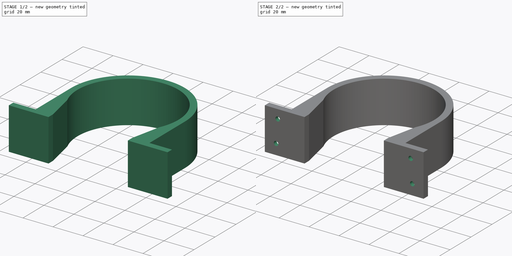
[diagram: build sequence overview — one tinted view per stage of 2, left to right]
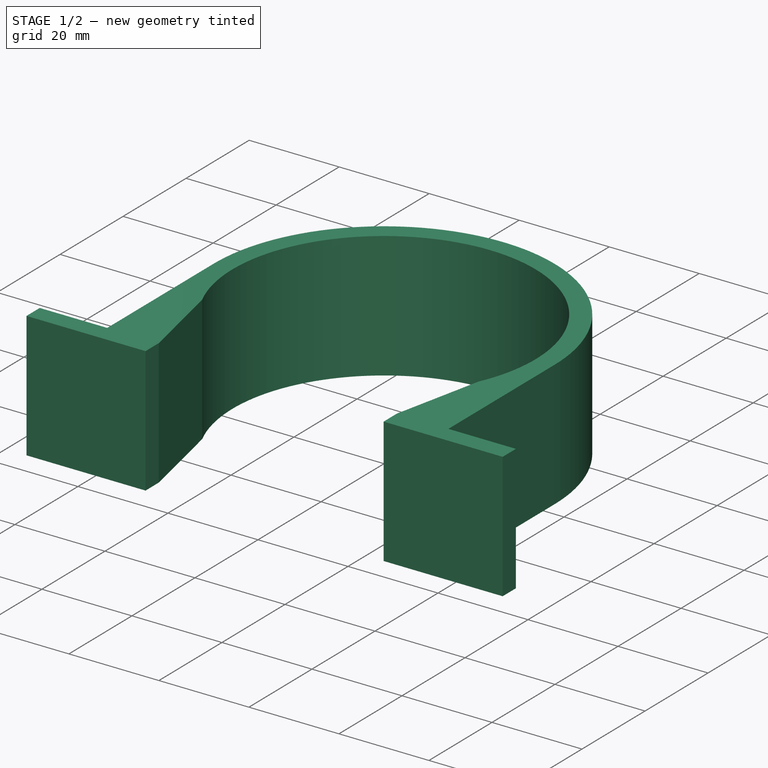
[diagram: stage 1 of 2 — iso view after this stage's code; geometry added in this stage tinted green]
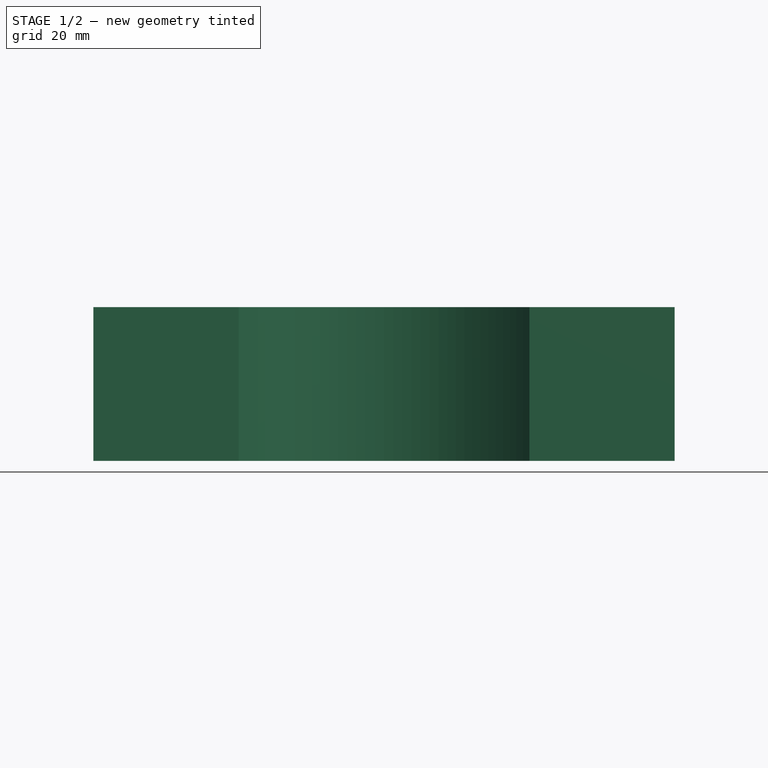
[diagram: stage 1 of 2 — front view after this stage's code; geometry added in this stage tinted green]
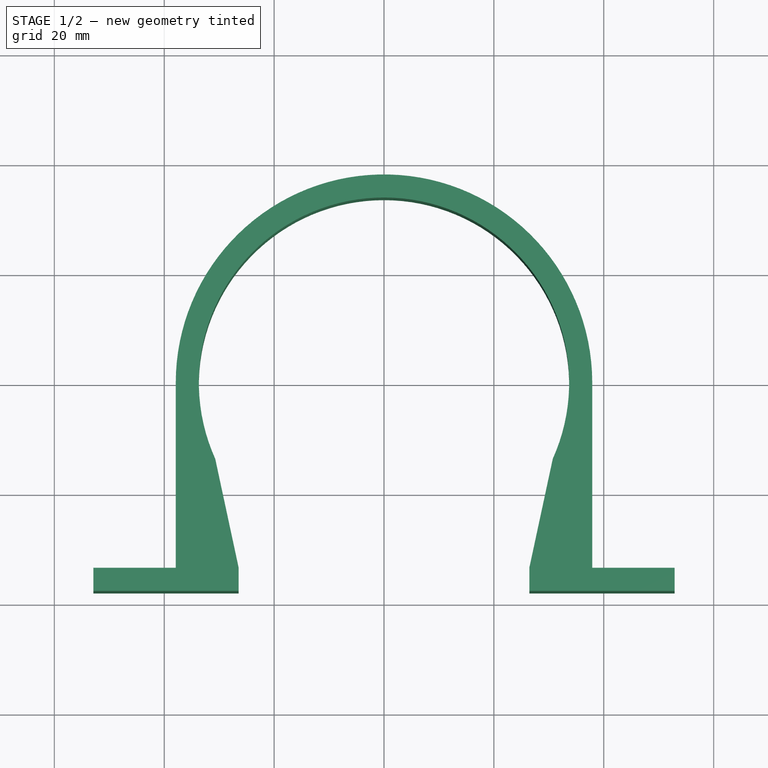
[diagram: stage 1 of 2 — top view after this stage's code; geometry added in this stage tinted green]
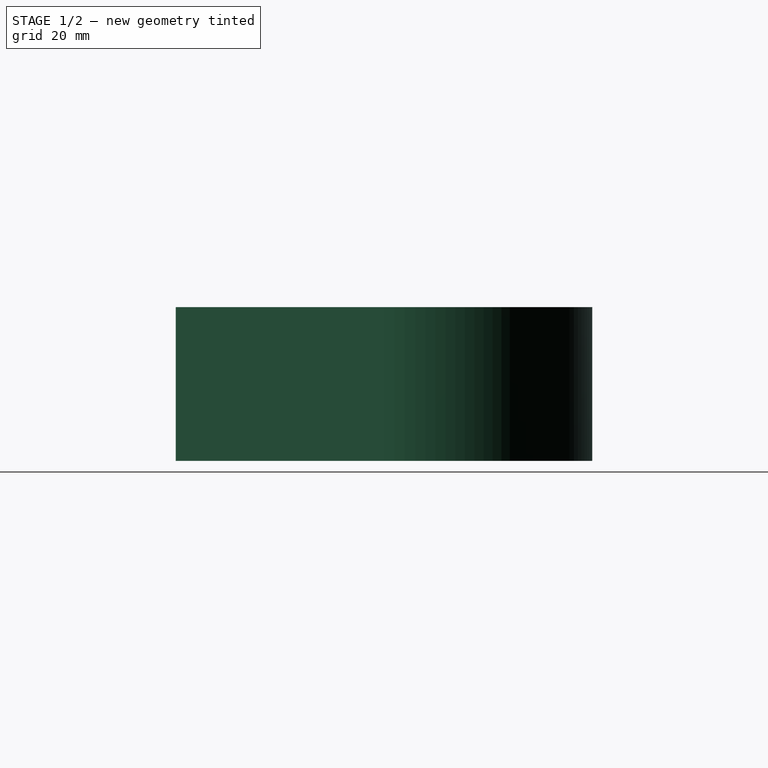
[diagram: stage 1 of 2 — right view after this stage's code; geometry added in this stage tinted green]
FCSTD DOCUMENT  (FreeCAD 1.0R39285 (Git))
Label: inline-filter-bracket
License: All rights reserved
LicenseURL: https://en.wikipedia.org/wiki/All_rights_reserved
objects: Sketcher::SketchObject×2, App::VarSet×1, PartDesign::Pad×1, PartDesign::Hole×1, PartDesign::Body×1
note: 11 computed .brp shape members not serialized (recipe doc carries the construction recipe); baked Part::Feature solids carry a one-line shape summary decoded from their .brp

FEATURE [App::VarSet] VarSet
  Base_diameter = 67.4
FEATURE [Sketcher::SketchObject] Sketch
  ArcFitTolerance = 1e-06
  AttachmentSupport = -> [XY_Plane]
  FullyConstrained = false
  MakeInternals = false
  MapMode = 5
  expr: Constraints[1] = VarSet.Base_diameter
  sketch-geometry (20):
    g0: ArcOfCircle CenterX=0 CenterY=0 CenterZ=0 NormalX=0 NormalY=0 NormalZ=1 AngleXU=0 Radius=33.7 StartAngle=5.85933 EndAngle=9.84863
    g1: LineSegment [constr] StartX=37.9 StartY=0 StartZ=0 EndX=52.9 EndY=0 EndZ=0
    g2: LineSegment [constr] StartX=-37.9 StartY=0 StartZ=0 EndX=-52.9 EndY=0 EndZ=0
    g3: LineSegment [constr] StartX=52.9 StartY=0 StartZ=0 EndX=52.9 EndY=-37.9 EndZ=0
    g4: LineSegment [constr] StartX=-52.9 StartY=0 StartZ=0 EndX=-52.9 EndY=-37.9 EndZ=0
    g5: LineSegment StartX=-52.9 StartY=-33.7 StartZ=0 EndX=-52.9 EndY=-37.9 EndZ=0
    g6: LineSegment StartX=-52.9 StartY=-37.9 StartZ=0 EndX=-26.45 EndY=-37.9 EndZ=0
    g7: LineSegment StartX=52.9 StartY=-37.9 StartZ=0 EndX=52.9 EndY=-33.7 EndZ=0
    g8: LineSegment StartX=52.9 StartY=-33.7 StartZ=0 EndX=37.9 EndY=-33.7 EndZ=0
    g9: GeomPoint [constr] X=26.45 Y=-33.7 Z=0
    g10: GeomPoint [constr] X=-26.45 Y=-33.7 Z=0
    g11: LineSegment StartX=30.7179 StartY=-13.86 StartZ=0 EndX=26.45 EndY=-33.7 EndZ=0
    g12: LineSegment StartX=-30.7179 StartY=-13.86 StartZ=0 EndX=-26.45 EndY=-33.7 EndZ=0
    g13: LineSegment StartX=37.9 StartY=0 StartZ=0 EndX=37.9 EndY=-33.7 EndZ=0
    g14: LineSegment StartX=-37.9 StartY=0 StartZ=0 EndX=-37.9 EndY=-33.7 EndZ=0
    g15: LineSegment StartX=-37.9 StartY=-33.7 StartZ=0 EndX=-52.9 EndY=-33.7 EndZ=0
    g16: LineSegment StartX=-26.45 StartY=-33.7 StartZ=0 EndX=-26.45 EndY=-37.9 EndZ=0
    g17: LineSegment StartX=26.45 StartY=-33.7 StartZ=0 EndX=26.45 EndY=-37.9 EndZ=0
    g18: LineSegment StartX=26.45 StartY=-37.9 StartZ=0 EndX=52.9 EndY=-37.9 EndZ=0
    g19: ArcOfCircle CenterX=0 CenterY=0 CenterZ=0 NormalX=0 NormalY=0 NormalZ=1 AngleXU=0 Radius=37.9 StartAngle=0 EndAngle=3.14159
  constraints (50):
    c: Coincident(g0,g-1)
    c: Diameter(g0) = 67.4
    c: Distance(g1) = 15
    c: PointOnObject(g1,g-1)
    c: Horizontal(g1)
    c: Distance(g2) = 15
    c: PointOnObject(g2,g-1)
    c: Horizontal(g2)
    c: Coincident(g3,g1)
    c: Vertical(g3)
    c: PointOnObject(g18,g3)
    c: Coincident(g4,g2)
    c: Vertical(g4)
    c: PointOnObject(g5,g4)
    c: Coincident(g5,g6)
    c: Coincident(g18,g7)
    c: Coincident(g7,g8)
    c: Coincident(g15,g5)
    c: Vertical(g5)
    c: Vertical(g7)
    c: Horizontal(g6)
    c: Horizontal(g8)
    c: Coincident(g11,g9)
    c: Coincident(g12,g10)
    c: Coincident(g13,g1)
    c: Vertical(g13)
    c: Coincident(g14,g2)
    c: Vertical(g14)
    c: Vertical(g16)
    c: PointOnObject(g17,g18)
    c: Vertical(g17)
    c: PointOnObject(g18,g17)
    c: Coincident(g8,g13)
    c: Coincident(g15,g14)
    c: Coincident(g10,g16)
    c: Coincident(g9,g17)
    c: Coincident(g12,g0)
    c: Coincident(g11,g0)
    c: Coincident(g6,g16)
    c: DistanceX(g6,g6) = 26.45
    c: Horizontal(g15)
    c: Distance(g7,g7) = 4.2
    c: Distance(g5,g5) = 4.2
    c: DistanceY(g14,g14) = 33.7
    c: DistanceY(g12,g12) = 19.84
    c: DistanceY(g11,g11) = 19.84
    c: Horizontal(g18)
    c: Coincident(g19,g0)
    c: Coincident(g19,g1)
    c: Coincident(g19,g2)
FEATURE [PartDesign::Pad] Pad
  Direction = (0,0,1)
  Length = 28
  Length2 = 10
  Profile = -> Sketch
  ReferenceAxis = -> Sketch [N_Axis]
  Refine = true
  Suppressed = false
  Type = 0
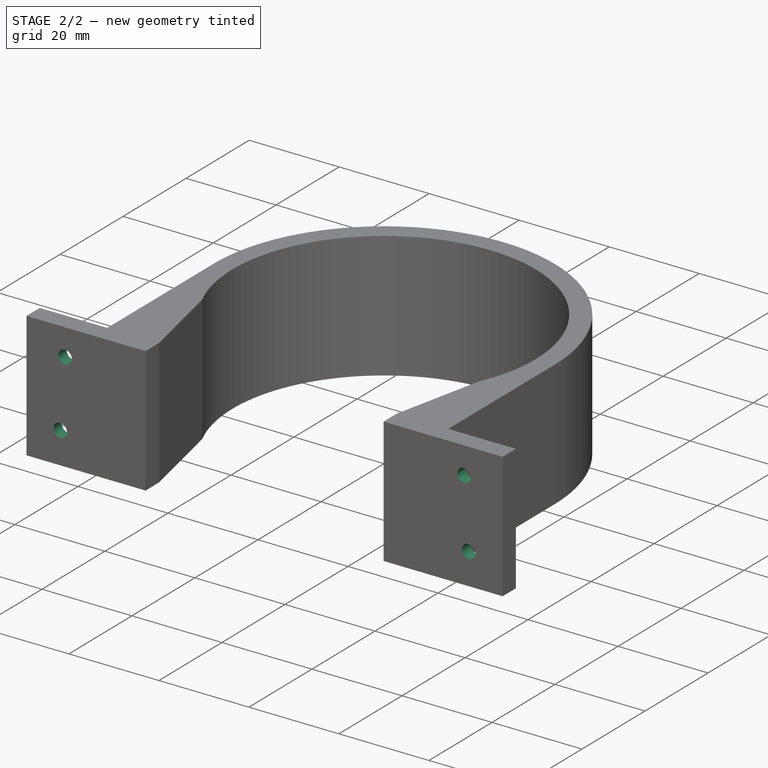
[diagram: stage 2 of 2 — iso view after this stage's code; geometry added in this stage tinted green]
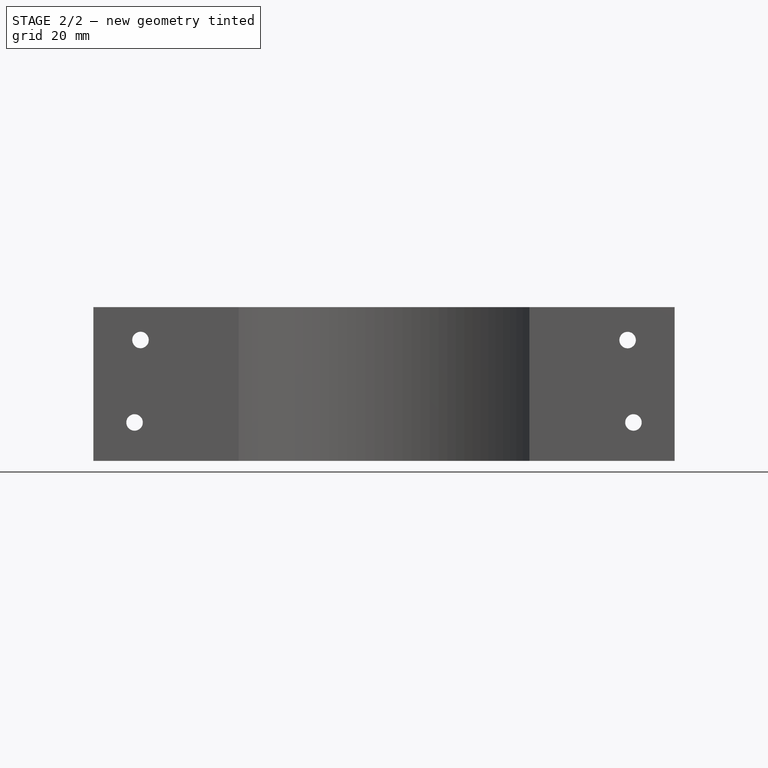
[diagram: stage 2 of 2 — front view after this stage's code; geometry added in this stage tinted green]
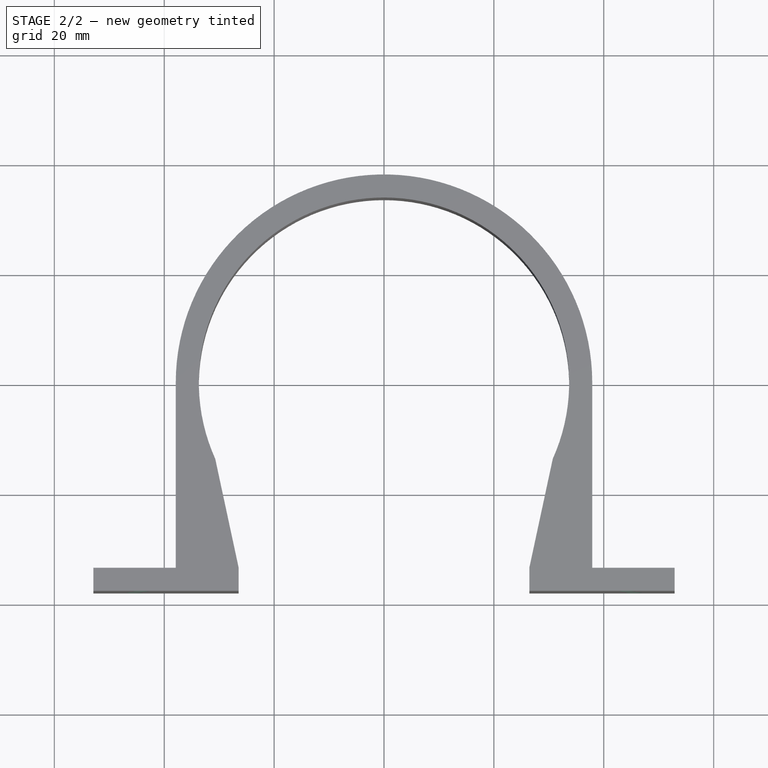
[diagram: stage 2 of 2 — top view after this stage's code; geometry added in this stage tinted green]
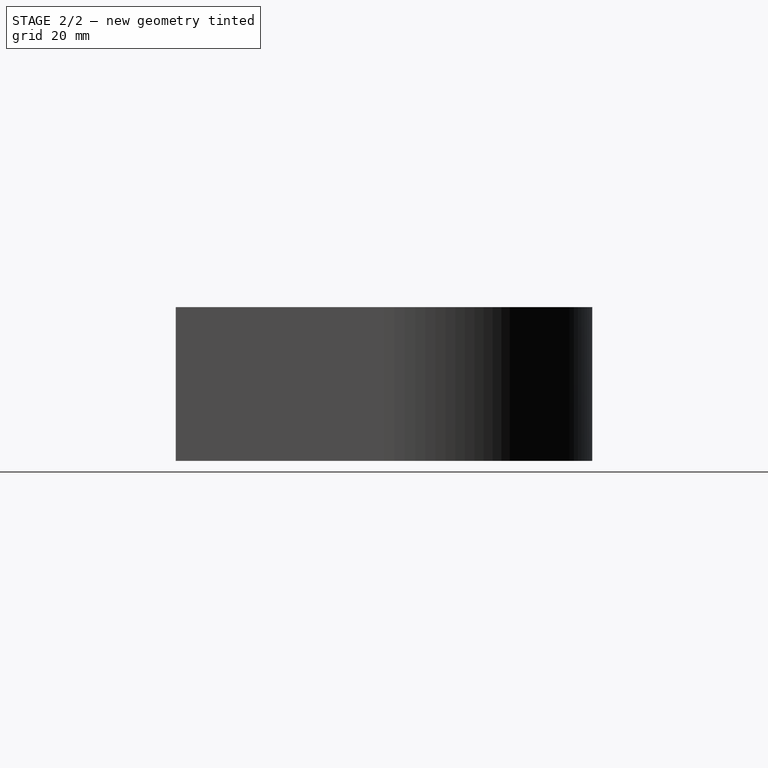
[diagram: stage 2 of 2 — right view after this stage's code; geometry added in this stage tinted green]
FEATURE [Sketcher::SketchObject] Sketch001
  ArcFitTolerance = 1e-06
  AttachmentSupport = -> [Pad]
  ExternalGeometry = -> [Pad]
  FullyConstrained = false
  MakeInternals = false
  MapMode = 5
  Placement = pos=(0,-33.7,0) rot=(0,0.707107,0.707107;3.14159rad)
  sketch-geometry (8):
    g0: LineSegment [constr] StartX=37.9 StartY=14 StartZ=0 EndX=52.9 EndY=0 EndZ=0
    g1: Circle CenterX=45.4 CenterY=7 CenterZ=0 NormalX=0 NormalY=0 NormalZ=1 AngleXU=0 Radius=1.5
    g2: LineSegment [constr] StartX=-52.9 StartY=0 StartZ=0 EndX=-37.9 EndY=14 EndZ=0
    g3: Circle CenterX=-45.4 CenterY=7 CenterZ=0 NormalX=0 NormalY=0 NormalZ=1 AngleXU=0 Radius=1.5
    g4: LineSegment [constr] StartX=-35.7727 StartY=15.9855 StartZ=0 EndX=-52.9 EndY=28 EndZ=0
    g5: Circle CenterX=-44.3363 CenterY=21.9928 CenterZ=0 NormalX=0 NormalY=0 NormalZ=1 AngleXU=0 Radius=1.5
    g6: LineSegment [constr] StartX=35.7378 StartY=16.0181 StartZ=0 EndX=52.9 EndY=28 EndZ=0
    g7: Circle CenterX=44.3189 CenterY=22.009 CenterZ=0 NormalX=0 NormalY=0 NormalZ=1 AngleXU=0 Radius=1.5
  constraints (16):
    c: Coincident(g-4,g0)
    c: Diameter(g1) = 3
    c: Symmetric(g0,g0,g1)
    c: Coincident(g2,g-6)
    c: Diameter(g3) = 3
    c: Symmetric(g2,g2,g3)
    c: Symmetric(g-5,g-5,g2)
    c: PointOnObject(g4,g2)
    c: Coincident(g4,g-6)
    c: Diameter(g5) = 3
    c: Symmetric(g4,g4,g5)
    c: Symmetric(g-3,g-3,g0)
    c: PointOnObject(g6,g0)
    c: Coincident(g6,g-4)
    c: Diameter(g7) = 3
    c: Symmetric(g6,g6,g7)
FEATURE [PartDesign::Hole] Hole
  BaseFeature = -> Pad
  CustomThreadClearance = 0
  Depth = 25
  DepthType = 0
  Diameter = 3
  DrillForDepth = false
  DrillPoint = 1
  DrillPointAngle = 118
  HoleCutCountersinkAngle = 90
  HoleCutCustomValues = false
  HoleCutDepth = 0
  HoleCutDiameter = 6.1
  HoleCutType = 2
  ModelThread = false
  Profile = -> Sketch001
  Refine = true
  Suppressed = false
  Tapered = false
  TaperedAngle = 90
  ThreadClass = 0
  ThreadDepth = 25
  ThreadDepthType = 0
  ThreadDirection = 0
  ThreadFit = 0
  ThreadSize = 0
  ThreadType = 0
  Threaded = false
  UseCustomThreadClearance = false
FEATURE [PartDesign::Body] Body
  AllowCompound = false
  Group = -> [Sketch,Pad,Sketch001,Hole]
  Origin = -> Origin
  Tip = -> Hole
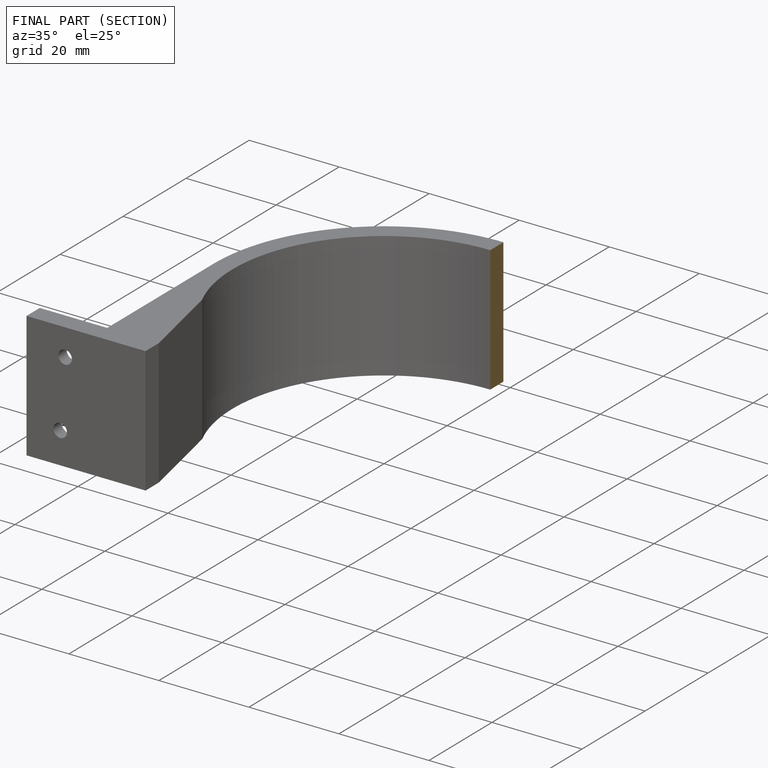
[diagram: finished part — half-section view (interior)]
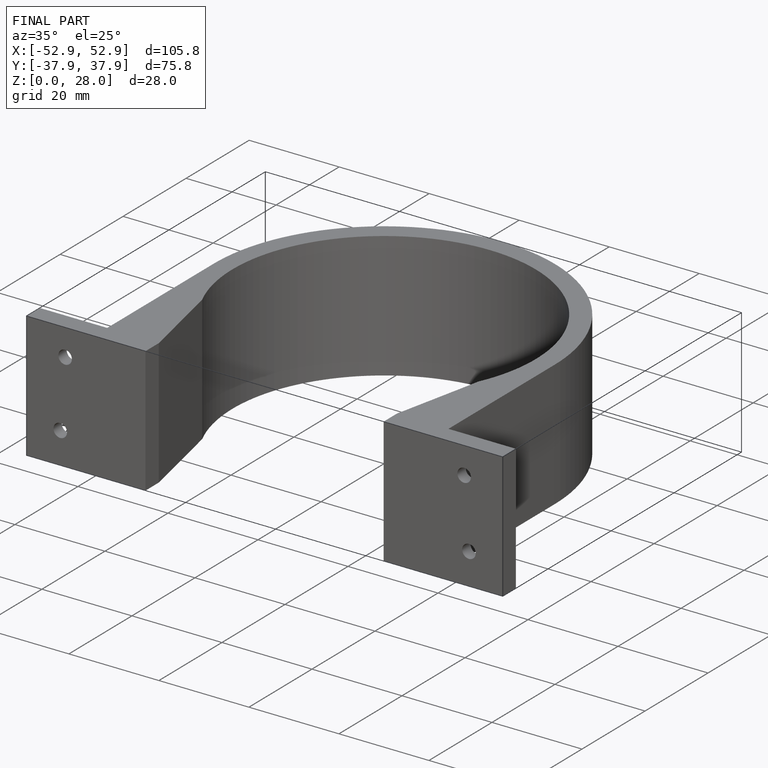
[diagram: finished part — iso view with bounding-box wireframe]
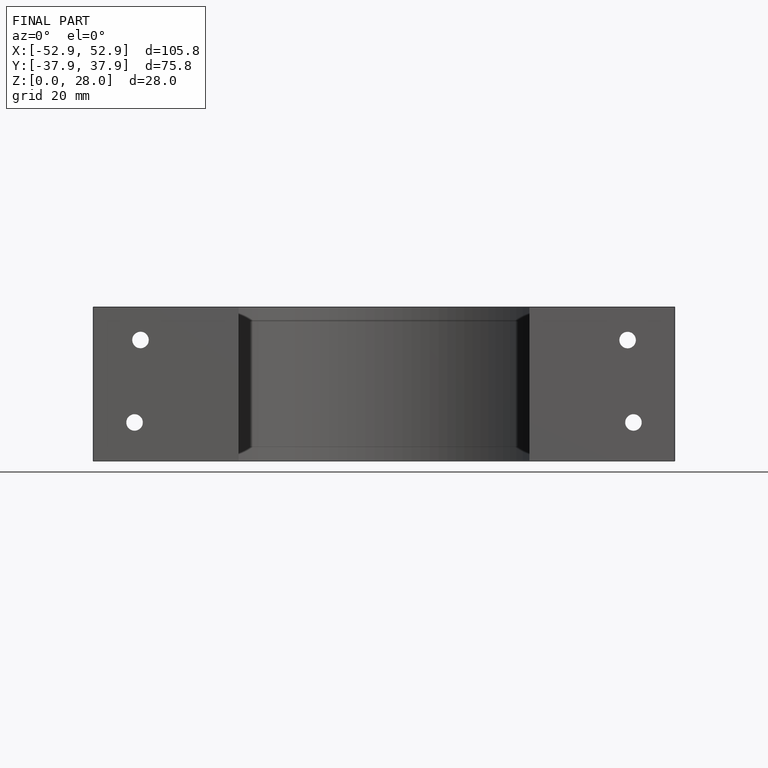
[diagram: finished part — front view with bounding-box wireframe]
